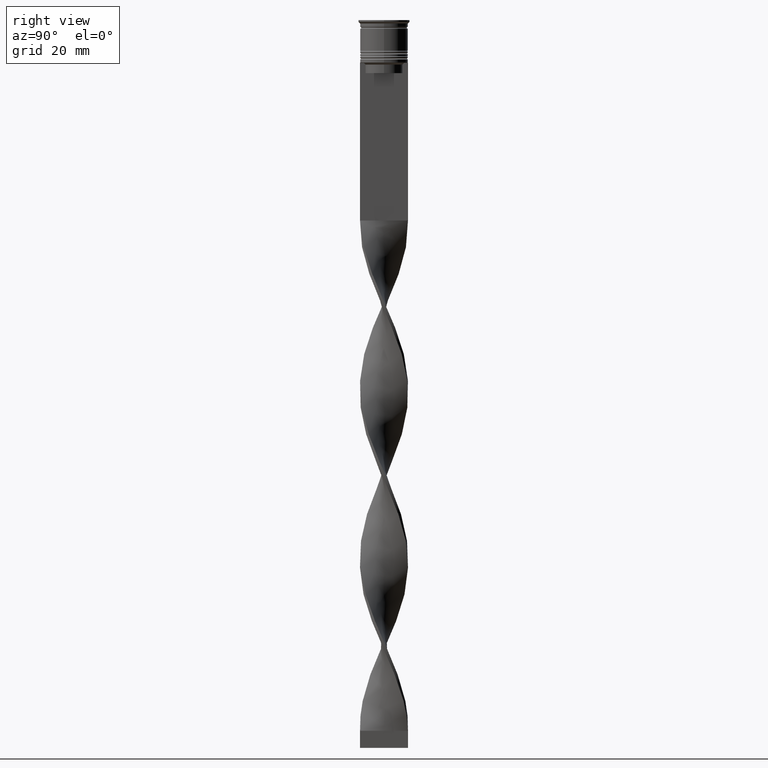
[diagram: clean part render]
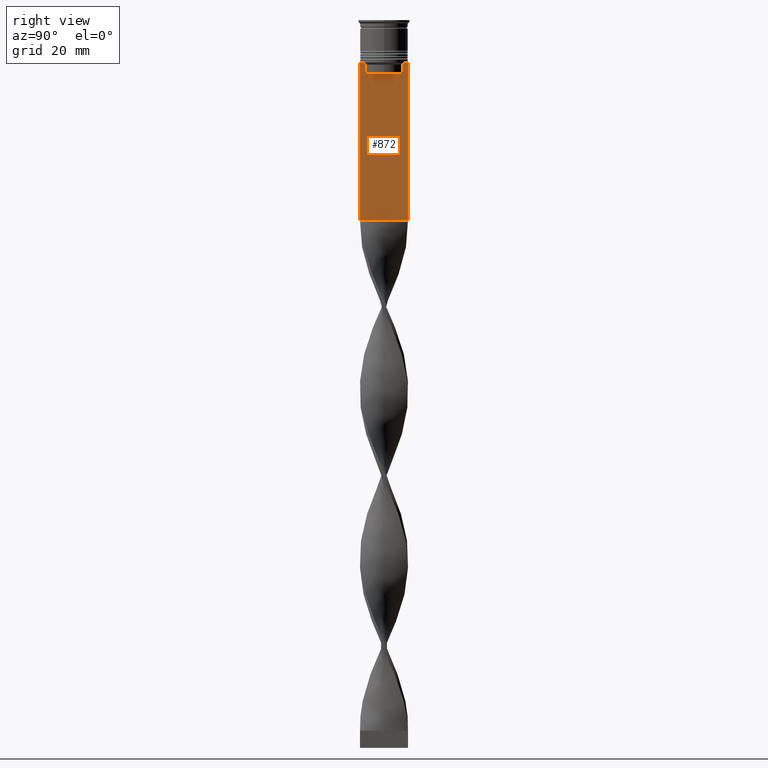
[diagram: same view with one face highlighted and labeled with its STEP entity id]
A machine part, right view. The second image highlights one B-rep face of the part: STEP entity #872.
In plain terms, the highlighted planar face has unit normal (-1, 0, 0).
Its self-contained STEP definition (entity closure, byte-faithful):
#18 = LINE ( 'NONE', #2107, #3360 ) ;
#36 = ORIENTED_EDGE ( 'NONE', *, *, #1933, .T. ) ;
#51 = EDGE_CURVE ( 'NONE', #2067, #1519, #3533, .T. ) ;
#91 = CARTESIAN_POINT ( 'NONE',  ( 0.5000000000000000000, -6.999999999999997335, -58.50000000000000000 ) ) ;
#93 = CARTESIAN_POINT ( 'NONE',  ( 0.5000000000000000000, -6.999999999999997335, -12.50000000000000000 ) ) ;
#151 = CARTESIAN_POINT ( 'NONE',  ( 0.5000000000000000000, 7.000000000000002665, -12.50000000000000000 ) ) ;
#155 = EDGE_CURVE ( 'NONE', #797, #1659, #2115, .T. ) ;
#171 = CARTESIAN_POINT ( 'NONE',  ( 0.5000000000000000000, -6.881860213634102053, -12.50000000000000000 ) ) ;
#191 = B_SPLINE_CURVE_WITH_KNOTS ( 'NONE', 3,
 ( #1207, #3025, #2091, #2352 ),
 .UNSPECIFIED., .F., .F.,
 ( 4, 4 ),
 ( 0.01003009312103698807, 0.01073859663834952557 ),
 .UNSPECIFIED. ) ;
#311 = DIRECTION ( 'NONE',  ( 0.000000000000000000, -1.000000000000000000, 0.000000000000000000 ) ) ;
#351 = LINE ( 'NONE', #372, #2927 ) ;
#372 = CARTESIAN_POINT ( 'NONE',  ( 0.5000000000000000000, -6.999999999999997335, -58.50000000000000000 ) ) ;
#375 = CARTESIAN_POINT ( 'NONE',  ( 0.5000000000000000000, -5.376802023508029826, -15.50000000000000000 ) ) ;
#465 = CARTESIAN_POINT ( 'NONE',  ( 0.5000000000000000000, 7.000000000000002665, -58.50000000000000000 ) ) ;
#468 = EDGE_CURVE ( 'NONE', #1096, #979, #1456, .T. ) ;
#491 = ORIENTED_EDGE ( 'NONE', *, *, #1977, .T. ) ;
#504 = CARTESIAN_POINT ( 'NONE',  ( 0.5000000000000000000, 5.376802023508029826, -15.50000000000000000 ) ) ;
#566 = CARTESIAN_POINT ( 'NONE',  ( 0.5000000000000000000, 6.881860213634102053, -12.50000000000000000 ) ) ;
#587 = EDGE_CURVE ( 'NONE', #979, #797, #863, .T. ) ;
#591 = EDGE_LOOP ( 'NONE', ( #1923, #36, #1159, #697, #3435, #2657, #491, #1628, #3471, #3074, #2169, #2437 ) ) ;
#679 = DIRECTION ( 'NONE',  ( -1.000000000000000000, 0.000000000000000000, 0.000000000000000000 ) ) ;
#697 = ORIENTED_EDGE ( 'NONE', *, *, #587, .T. ) ;
#703 = VERTEX_POINT ( 'NONE', #91 ) ;
#719 = LINE ( 'NONE', #93, #3620 ) ;
#737 = CARTESIAN_POINT ( 'NONE',  ( 0.5000000000000000000, -5.878775382679629402, -12.50000000000000000 ) ) ;
#772 = VECTOR ( 'NONE', #3678, 1000.000000000000000 ) ;
#797 = VERTEX_POINT ( 'NONE', #375 ) ;
#820 = EDGE_CURVE ( 'NONE', #3502, #901, #2212, .T. ) ;
#863 = LINE ( 'NONE', #3284, #3544 ) ;
#872 = ADVANCED_FACE ( 'NONE', ( #3416 ), #3071, .F. ) ;
#882 = DIRECTION ( 'NONE',  ( 0.000000000000000000, 0.000000000000000000, -1.000000000000000000 ) ) ;
#901 = VERTEX_POINT ( 'NONE', #465 ) ;
#954 = CARTESIAN_POINT ( 'NONE',  ( 0.5000000000000000000, 7.000000000000002665, 1.535668847618198329 ) ) ;
#979 = VERTEX_POINT ( 'NONE', #504 ) ;
#1096 = VERTEX_POINT ( 'NONE', #2982 ) ;
#1159 = ORIENTED_EDGE ( 'NONE', *, *, #468, .T. ) ;
#1172 = CARTESIAN_POINT ( 'NONE',  ( 0.5000000000000000000, -6.999999999999997335, -12.50000000000000000 ) ) ;
#1207 = CARTESIAN_POINT ( 'NONE',  ( 0.5000000000000000000, 5.878775382679629402, -12.50000000000000000 ) ) ;
#1221 = LINE ( 'NONE', #3646, #1227 ) ;
#1227 = VECTOR ( 'NONE', #2404, 1000.000000000000000 ) ;
#1352 = CARTESIAN_POINT ( 'NONE',  ( 0.5000000000000000000, -5.544156999454441959, -12.83336396790503642 ) ) ;
#1366 = CARTESIAN_POINT ( 'NONE',  ( 0.5000000000000000000, 5.878775382679629402, -12.50000000000000000 ) ) ;
#1456 = LINE ( 'NONE', #2121, #2544 ) ;
#1490 = LINE ( 'NONE', #1742, #2045 ) ;
#1518 = DIRECTION ( 'NONE',  ( 0.000000000000000000, -1.000000000000000000, 0.000000000000000000 ) ) ;
#1519 = VERTEX_POINT ( 'NONE', #1366 ) ;
#1617 = EDGE_CURVE ( 'NONE', #2496, #3461, #18, .T. ) ;
#1628 = ORIENTED_EDGE ( 'NONE', *, *, #1617, .T. ) ;
#1639 = CARTESIAN_POINT ( 'NONE',  ( 0.5000000000000000000, -5.711478856069293286, -12.66669469529570335 ) ) ;
#1659 = VERTEX_POINT ( 'NONE', #3035 ) ;
#1742 = CARTESIAN_POINT ( 'NONE',  ( 0.5000000000000000000, -6.999999999999997335, -12.50000000000000000 ) ) ;
#1866 = DIRECTION ( 'NONE',  ( 0.000000000000000000, 0.000000000000000000, 1.000000000000000000 ) ) ;
#1923 = ORIENTED_EDGE ( 'NONE', *, *, #51, .T. ) ;
#1924 = CARTESIAN_POINT ( 'NONE',  ( 0.5000000000000000000, -6.999999999999997335, 1.535668847618198329 ) ) ;
#1933 = EDGE_CURVE ( 'NONE', #1519, #1096, #191, .T. ) ;
#1977 = EDGE_CURVE ( 'NONE', #3584, #2496, #1490, .T. ) ;
#2045 = VECTOR ( 'NONE', #2412, 1000.000000000000000 ) ;
#2067 = VERTEX_POINT ( 'NONE', #566 ) ;
#2091 = CARTESIAN_POINT ( 'NONE',  ( 0.5000000000000000000, 5.544156989057553275, -12.83336397825725861 ) ) ;
#2107 = CARTESIAN_POINT ( 'NONE',  ( 0.5000000000000000000, -6.999999999999997335, -12.50000000000000000 ) ) ;
#2115 = LINE ( 'NONE', #2468, #3290 ) ;
#2121 = CARTESIAN_POINT ( 'NONE',  ( 0.5000000000000000000, 5.376802023508029826, 0.000000000000000000 ) ) ;
#2169 = ORIENTED_EDGE ( 'NONE', *, *, #820, .F. ) ;
#2194 = EDGE_CURVE ( 'NONE', #703, #901, #351, .T. ) ;
#2212 = LINE ( 'NONE', #954, #772 ) ;
#2352 = CARTESIAN_POINT ( 'NONE',  ( 0.5000000000000000000, 5.376802023508029826, -13.00000000000000178 ) ) ;
#2404 = DIRECTION ( 'NONE',  ( 0.000000000000000000, 0.000000000000000000, -1.000000000000000000 ) ) ;
#2412 = DIRECTION ( 'NONE',  ( 0.000000000000000000, -1.000000000000000000, 0.000000000000000000 ) ) ;
#2437 = ORIENTED_EDGE ( 'NONE', *, *, #3068, .T. ) ;
#2468 = CARTESIAN_POINT ( 'NONE',  ( 0.5000000000000000000, -5.376802023508029826, 0.000000000000000000 ) ) ;
#2496 = VERTEX_POINT ( 'NONE', #171 ) ;
#2544 = VECTOR ( 'NONE', #882, 1000.000000000000000 ) ;
#2546 = AXIS2_PLACEMENT_3D ( 'NONE', #1924, #679, #1866 ) ;
#2586 = B_SPLINE_CURVE_WITH_KNOTS ( 'NONE', 3,
 ( #3453, #1352, #1639, #737 ),
 .UNSPECIFIED., .F., .F.,
 ( 4, 4 ),
 ( 0.02539176325380714666, 0.02610162431828674801 ),
 .UNSPECIFIED. ) ;
#2635 = CARTESIAN_POINT ( 'NONE',  ( 0.5000000000000000000, -6.999999999999997335, -12.50000000000000000 ) ) ;
#2657 = ORIENTED_EDGE ( 'NONE', *, *, #3541, .T. ) ;
#2703 = DIRECTION ( 'NONE',  ( 0.000000000000000000, -1.000000000000000000, 0.000000000000000000 ) ) ;
#2788 = DIRECTION ( 'NONE',  ( 0.000000000000000000, 1.000000000000000000, 0.000000000000000000 ) ) ;
#2799 = EDGE_CURVE ( 'NONE', #3461, #703, #1221, .T. ) ;
#2926 = CARTESIAN_POINT ( 'NONE',  ( 0.5000000000000000000, -5.878775382679629402, -12.50000000000000000 ) ) ;
#2927 = VECTOR ( 'NONE', #2788, 1000.000000000000000 ) ;
#2982 = CARTESIAN_POINT ( 'NONE',  ( 0.5000000000000000000, 5.376802023508029826, -13.00000000000000178 ) ) ;
#3025 = CARTESIAN_POINT ( 'NONE',  ( 0.5000000000000000000, 5.711478846560141598, -12.66669470477064685 ) ) ;
#3035 = CARTESIAN_POINT ( 'NONE',  ( 0.5000000000000000000, -5.376802023508029826, -13.00000000000000178 ) ) ;
#3065 = DIRECTION ( 'NONE',  ( -0.000000000000000000, -0.000000000000000000, 1.000000000000000000 ) ) ;
#3068 = EDGE_CURVE ( 'NONE', #3502, #2067, #719, .T. ) ;
#3071 = PLANE ( 'NONE',  #2546 ) ;
#3074 = ORIENTED_EDGE ( 'NONE', *, *, #2194, .T. ) ;
#3284 = CARTESIAN_POINT ( 'NONE',  ( 0.5000000000000000000, 5.400000000000003908, -15.50000000000000000 ) ) ;
#3290 = VECTOR ( 'NONE', #3065, 1000.000000000000000 ) ;
#3360 = VECTOR ( 'NONE', #1518, 1000.000000000000000 ) ;
#3416 = FACE_OUTER_BOUND ( 'NONE', #591, .T. ) ;
#3435 = ORIENTED_EDGE ( 'NONE', *, *, #155, .T. ) ;
#3453 = CARTESIAN_POINT ( 'NONE',  ( 0.5000000000000000000, -5.376802023508029826, -13.00000000000000178 ) ) ;
#3461 = VERTEX_POINT ( 'NONE', #2635 ) ;
#3471 = ORIENTED_EDGE ( 'NONE', *, *, #2799, .T. ) ;
#3502 = VERTEX_POINT ( 'NONE', #151 ) ;
#3533 = LINE ( 'NONE', #1172, #3604 ) ;
#3541 = EDGE_CURVE ( 'NONE', #1659, #3584, #2586, .T. ) ;
#3544 = VECTOR ( 'NONE', #2703, 1000.000000000000000 ) ;
#3584 = VERTEX_POINT ( 'NONE', #2926 ) ;
#3604 = VECTOR ( 'NONE', #311, 1000.000000000000000 ) ;
#3620 = VECTOR ( 'NONE', #3680, 1000.000000000000000 ) ;
#3646 = CARTESIAN_POINT ( 'NONE',  ( 0.5000000000000000000, -6.999999999999997335, 1.535668847618198329 ) ) ;
#3678 = DIRECTION ( 'NONE',  ( 0.000000000000000000, 0.000000000000000000, -1.000000000000000000 ) ) ;
#3680 = DIRECTION ( 'NONE',  ( 0.000000000000000000, -1.000000000000000000, 0.000000000000000000 ) ) ;